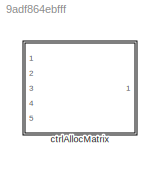
MODEL slx_9adf864ebfff
KIND library
CONFIG AbsTol = auto
CONFIG EnableMultiTasking = off
CONFIG FixedStep = auto
CONFIG MaxStep = auto
CONFIG MinStep = auto
CONFIG RelTol = 1e-3
CONFIG SampleTimeConstraint = Unconstrained
CONFIG SolverName = VariableStepAuto
CONFIG StartTime = 0.0
CONFIG StopTime = 10.0
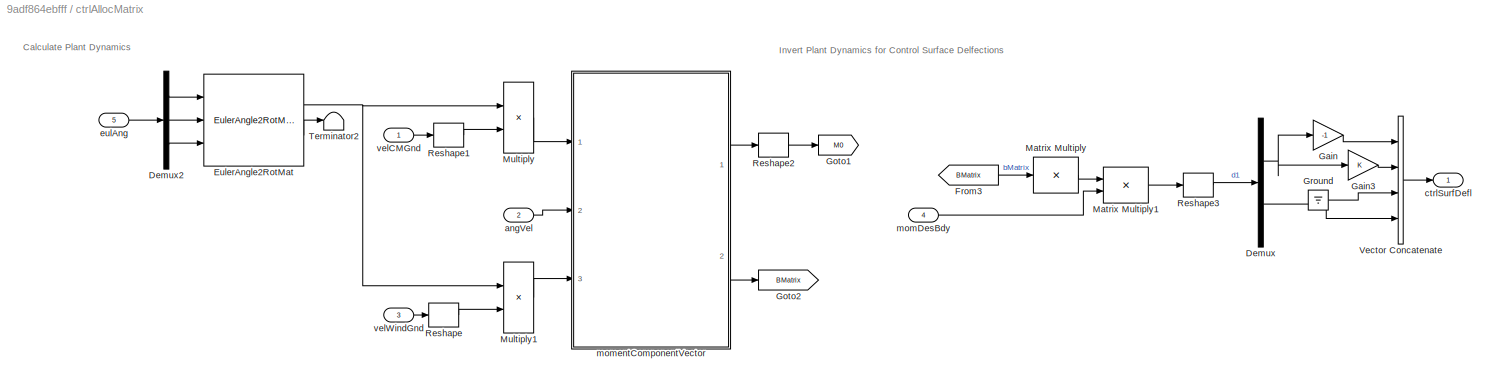
BLOCK [SubSystem] ctrlAllocMatrix
  MinAlgLoopOccurrences = on
  Ports = [5, 1]
  RequestExecContextInheritance = off
BLOCK [Demux] ctrlAllocMatrix/Demux
  Outputs = 2
  Ports = [1, 2]
BLOCK [Demux] ctrlAllocMatrix/Demux2
  Outputs = 3
  Ports = [1, 3]
BLOCK [Reference] ctrlAllocMatrix/EulerAngle2RotMat  REF=eulAng2RotMat_ul/EulerAngle2RotMat
  Ports = [3, 2]
  SourceBlock = eulAng2RotMat_ul/EulerAngle2RotMat
  SourceType = SubSystem
BLOCK [From] ctrlAllocMatrix/From3
  GotoTag = BMatrix
BLOCK [Gain] ctrlAllocMatrix/Gain
  Gain = -1
BLOCK [Gain] ctrlAllocMatrix/Gain3
BLOCK [Goto] ctrlAllocMatrix/Goto1
  GotoTag = M0
BLOCK [Goto] ctrlAllocMatrix/Goto2
  GotoTag = BMatrix
BLOCK [Ground] ctrlAllocMatrix/Ground
BLOCK [Product] ctrlAllocMatrix/Matrix Multiply
  Inputs = /
  Multiplication = Matrix(*)
  Ports = [1, 1]
BLOCK [Product] ctrlAllocMatrix/Matrix Multiply1
  Multiplication = Matrix(*)
  Ports = [2, 1]
BLOCK [Product] ctrlAllocMatrix/Multiply
  Multiplication = Matrix(*)
  Ports = [2, 1]
BLOCK [Product] ctrlAllocMatrix/Multiply1
  Multiplication = Matrix(*)
  Ports = [2, 1]
BLOCK [Reshape] ctrlAllocMatrix/Reshape
  OutputDimensionality = Column vector (2-D)
  Ports = [1, 1]
BLOCK [Reshape] ctrlAllocMatrix/Reshape1
  OutputDimensionality = Column vector (2-D)
  Ports = [1, 1]
BLOCK [Reshape] ctrlAllocMatrix/Reshape2
  OutputDimensionality = Column vector (2-D)
  Ports = [1, 1]
BLOCK [Reshape] ctrlAllocMatrix/Reshape3
  Ports = [1, 1]
BLOCK [Terminator] ctrlAllocMatrix/Terminator2
BLOCK [Concatenate] ctrlAllocMatrix/Vector Concatenate
  NumInputs = 4
  Ports = [4, 1]
BLOCK [Inport] ctrlAllocMatrix/angVel
  Port = 2
BLOCK [Outport] ctrlAllocMatrix/ctrlSurfDefl
  VectorParamsAs1DForOutWhenUnconnected = off
BLOCK [Inport] ctrlAllocMatrix/eulAng
  Port = 5
BLOCK [Inport] ctrlAllocMatrix/momDesBdy
  Port = 4
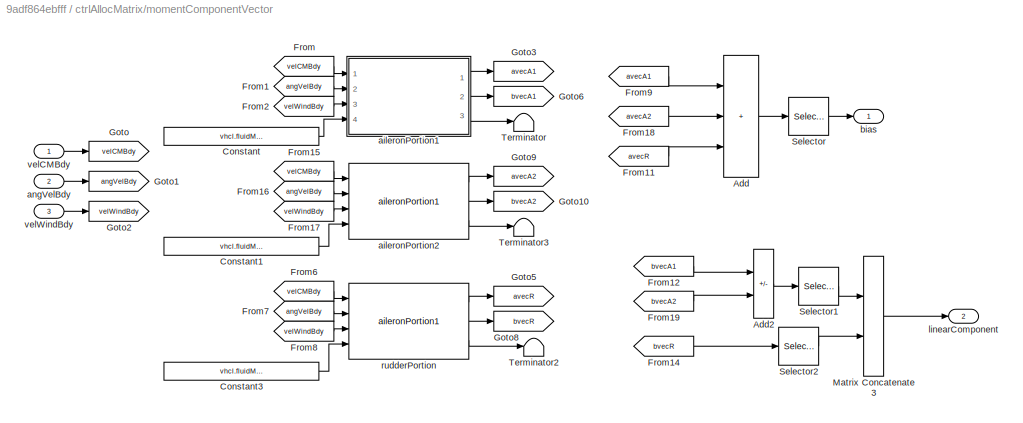
BLOCK [SubSystem] ctrlAllocMatrix/momentComponentVector
  Ports = [3, 2]
  RequestExecContextInheritance = off
BLOCK [Sum] ctrlAllocMatrix/momentComponentVector/Add
  IconShape = rectangular
  Inputs = +++
  Ports = [3, 1]
BLOCK [Sum] ctrlAllocMatrix/momentComponentVector/Add2
  IconShape = rectangular
  Inputs = -+
  Ports = [2, 1]
BLOCK [Constant] ctrlAllocMatrix/momentComponentVector/Constant
  Value = vhcl.fluidMomentArms.Value(:,1)
BLOCK [Constant] ctrlAllocMatrix/momentComponentVector/Constant1
  Value = vhcl.fluidMomentArms.Value(:,2)
BLOCK [Constant] ctrlAllocMatrix/momentComponentVector/Constant3
  Value = vhcl.fluidMomentArms.Value(:,4)
BLOCK [From] ctrlAllocMatrix/momentComponentVector/From
  GotoTag = velCMBdy
BLOCK [From] ctrlAllocMatrix/momentComponentVector/From1
  GotoTag = angVelBdy
BLOCK [From] ctrlAllocMatrix/momentComponentVector/From11
  GotoTag = avecR
BLOCK [From] ctrlAllocMatrix/momentComponentVector/From12
  GotoTag = bvecA1
BLOCK [From] ctrlAllocMatrix/momentComponentVector/From14
  GotoTag = bvecR
BLOCK [From] ctrlAllocMatrix/momentComponentVector/From15
  GotoTag = velCMBdy
BLOCK [From] ctrlAllocMatrix/momentComponentVector/From16
  GotoTag = angVelBdy
BLOCK [From] ctrlAllocMatrix/momentComponentVector/From17
  GotoTag = velWindBdy
BLOCK [From] ctrlAllocMatrix/momentComponentVector/From18
  GotoTag = avecA2
BLOCK [From] ctrlAllocMatrix/momentComponentVector/From19
  GotoTag = bvecA2
BLOCK [From] ctrlAllocMatrix/momentComponentVector/From2
  GotoTag = velWindBdy
BLOCK [From] ctrlAllocMatrix/momentComponentVector/From6
  GotoTag = velCMBdy
BLOCK [From] ctrlAllocMatrix/momentComponentVector/From7
  GotoTag = angVelBdy
BLOCK [From] ctrlAllocMatrix/momentComponentVector/From8
  GotoTag = velWindBdy
BLOCK [From] ctrlAllocMatrix/momentComponentVector/From9
  GotoTag = avecA1
BLOCK [Goto] ctrlAllocMatrix/momentComponentVector/Goto
  GotoTag = velCMBdy
BLOCK [Goto] ctrlAllocMatrix/momentComponentVector/Goto1
  GotoTag = angVelBdy
BLOCK [Goto] ctrlAllocMatrix/momentComponentVector/Goto10
  GotoTag = bvecA2
BLOCK [Goto] ctrlAllocMatrix/momentComponentVector/Goto2
  GotoTag = velWindBdy
BLOCK [Goto] ctrlAllocMatrix/momentComponentVector/Goto3
  GotoTag = avecA1
BLOCK [Goto] ctrlAllocMatrix/momentComponentVector/Goto5
  GotoTag = avecR
BLOCK [Goto] ctrlAllocMatrix/momentComponentVector/Goto6
  GotoTag = bvecA1
BLOCK [Goto] ctrlAllocMatrix/momentComponentVector/Goto8
  GotoTag = bvecR
BLOCK [Goto] ctrlAllocMatrix/momentComponentVector/Goto9
  GotoTag = avecA2
BLOCK [Concatenate] ctrlAllocMatrix/momentComponentVector/Matrix Concatenate3
  ConcatenateDimension = 2
  Mode = Multidimensional array
  Ports = [2, 1]
BLOCK [Selector] ctrlAllocMatrix/momentComponentVector/Selector
  IndexOptions = Index vector (dialog)
  Indices = [1 3]
  InputPortWidth = 3
  OutputSizes = 1
  Ports = [1, 1]
BLOCK [Selector] ctrlAllocMatrix/momentComponentVector/Selector1
  IndexOptions = Index vector (dialog)
  Indices = [1 3]
  InputPortWidth = 3
  OutputSizes = 1
  Ports = [1, 1]
BLOCK [Selector] ctrlAllocMatrix/momentComponentVector/Selector2
  IndexOptions = Index vector (dialog)
  Indices = [1 3]
  InputPortWidth = 3
  OutputSizes = 1
  Ports = [1, 1]
BLOCK [Terminator] ctrlAllocMatrix/momentComponentVector/Terminator
BLOCK [Terminator] ctrlAllocMatrix/momentComponentVector/Terminator2
BLOCK [Terminator] ctrlAllocMatrix/momentComponentVector/Terminator3
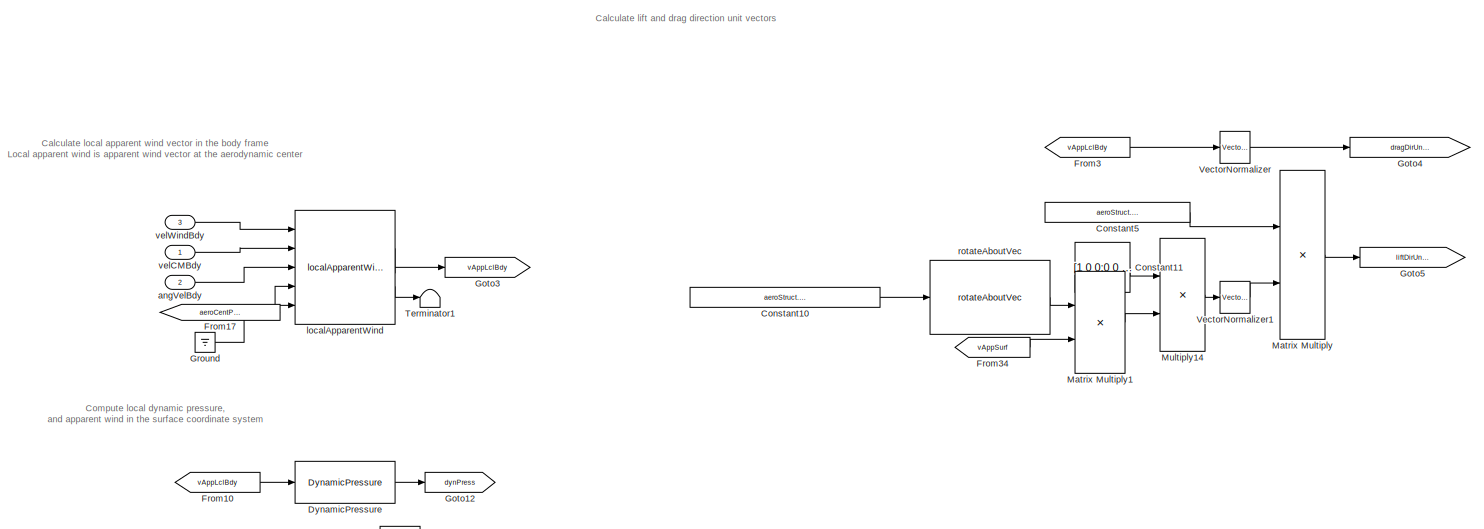
[diagram: ctrlAllocMatrix/momentComponentVector/aileronPortion1 - part 1/4, top center region]
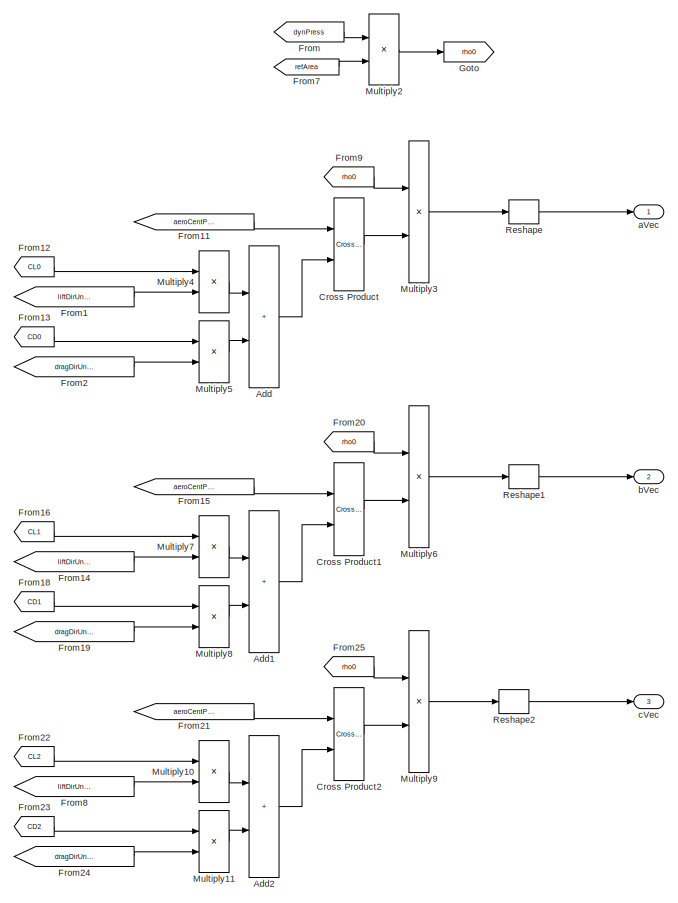
[diagram: ctrlAllocMatrix/momentComponentVector/aileronPortion1 - part 2/4, middle right region]
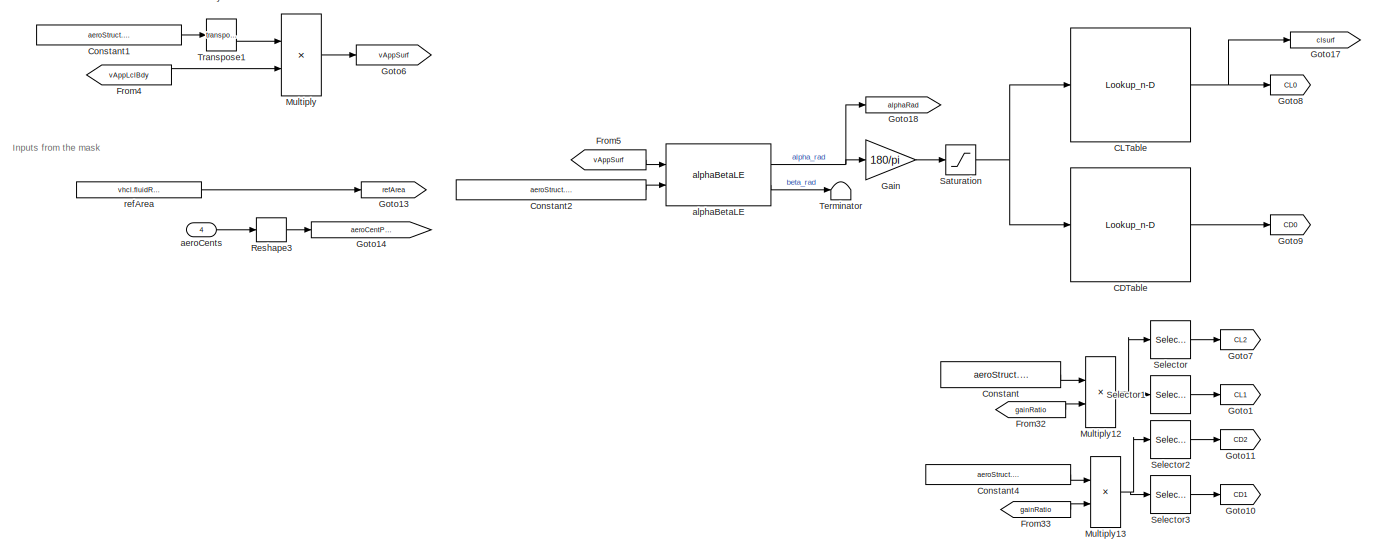
[diagram: ctrlAllocMatrix/momentComponentVector/aileronPortion1 - part 3/4, central region]
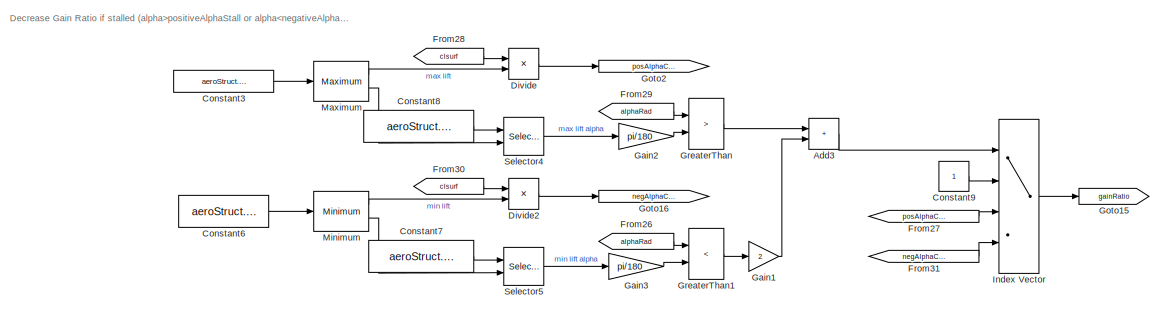
[diagram: ctrlAllocMatrix/momentComponentVector/aileronPortion1 - part 4/4, bottom right region]
BLOCK [SubSystem] ctrlAllocMatrix/momentComponentVector/aileronPortion1
  Ports = [4, 3]
  RequestExecContextInheritance = off
BLOCK [Sum] ctrlAllocMatrix/momentComponentVector/aileronPortion1/Add
  IconShape = rectangular
  Ports = [2, 1]
BLOCK [Sum] ctrlAllocMatrix/momentComponentVector/aileronPortion1/Add1
  IconShape = rectangular
  Ports = [2, 1]
BLOCK [Sum] ctrlAllocMatrix/momentComponentVector/aileronPortion1/Add2
  IconShape = rectangular
  Ports = [2, 1]
BLOCK [Sum] ctrlAllocMatrix/momentComponentVector/aileronPortion1/Add3
  IconShape = rectangular
  Ports = [2, 1]
BLOCK [Lookup_n-D] ctrlAllocMatrix/momentComponentVector/aileronPortion1/CDTable
  BreakpointsForDimension1 = aeroStruct.alpha.Value
  ExtrapMethod = Clip
  InputPortMap = u0
  InternalRulePriority = Speed
  LookupTableObject = CLTable
  NumberOfTableDimensions = 1
  Ports = [1, 1]
  RndMeth = Simplest
  Table = aeroStruct.CD.Value
  UseLastTableValue = on
BLOCK [Lookup_n-D] ctrlAllocMatrix/momentComponentVector/aileronPortion1/CLTable
  BreakpointsForDimension1 = aeroStruct.alpha.Value
  ExtrapMethod = Clip
  InputPortMap = u0
  InternalRulePriority = Speed
  LookupTableObject = CLTable
  NumberOfTableDimensions = 1
  Ports = [1, 1]
  RndMeth = Simplest
  Table = aeroStruct.CL.Value
  UseLastTableValue = on
BLOCK [Constant] ctrlAllocMatrix/momentComponentVector/aileronPortion1/Constant
  NameLocation = top
  Value = aeroStruct.gainCL.Value
BLOCK [Constant] ctrlAllocMatrix/momentComponentVector/aileronPortion1/Constant1
  Value = aeroStruct.RSurf2Bdy.Value
BLOCK [Constant] ctrlAllocMatrix/momentComponentVector/aileronPortion1/Constant10
  Value = aeroStruct.incAlphaUnitVecSurf.Value
BLOCK [Constant] ctrlAllocMatrix/momentComponentVector/aileronPortion1/Constant11
  Value = [1 0 0;0 0 0;0 0 1]
BLOCK [Constant] ctrlAllocMatrix/momentComponentVector/aileronPortion1/Constant2
  Value = aeroStruct.incAlphaUnitVecSurf.Value
BLOCK [Constant] ctrlAllocMatrix/momentComponentVector/aileronPortion1/Constant3
  Value = aeroStruct.CL.Value
BLOCK [Constant] ctrlAllocMatrix/momentComponentVector/aileronPortion1/Constant4
  NameLocation = top
  Value = aeroStruct.gainCD.Value
BLOCK [Constant] ctrlAllocMatrix/momentComponentVector/aileronPortion1/Constant5
  Value = aeroStruct.RSurf2Bdy.Value
BLOCK [Constant] ctrlAllocMatrix/momentComponentVector/aileronPortion1/Constant6
  Value = aeroStruct.CL.Value
BLOCK [Constant] ctrlAllocMatrix/momentComponentVector/aileronPortion1/Constant7
  Value = aeroStruct.alpha.Value
BLOCK [Constant] ctrlAllocMatrix/momentComponentVector/aileronPortion1/Constant8
  Value = aeroStruct.alpha.Value
BLOCK [Constant] ctrlAllocMatrix/momentComponentVector/aileronPortion1/Constant9
BLOCK [Reference] ctrlAllocMatrix/momentComponentVector/aileronPortion1/Cross Product  REF=vrlib/Utilities/Cross Product
  Ports = [2, 1]
  SourceBlock = vrlib/Utilities/Cross Product
  SourceProductBaseCode = SL
  SourceType = Cross Product
BLOCK [Reference] ctrlAllocMatrix/momentComponentVector/aileronPortion1/Cross Product1  REF=vrlib/Utilities/Cross Product
  Ports = [2, 1]
  SourceBlock = vrlib/Utilities/Cross Product
  SourceProductBaseCode = SL
  SourceType = Cross Product
BLOCK [Reference] ctrlAllocMatrix/momentComponentVector/aileronPortion1/Cross Product2  REF=vrlib/Utilities/Cross Product
  Ports = [2, 1]
  SourceBlock = vrlib/Utilities/Cross Product
  SourceProductBaseCode = SL
  SourceType = Cross Product
BLOCK [Product] ctrlAllocMatrix/momentComponentVector/aileronPortion1/Divide
  Inputs = */
  Ports = [2, 1]
BLOCK [Product] ctrlAllocMatrix/momentComponentVector/aileronPortion1/Divide2
  Inputs = */
  Ports = [2, 1]
BLOCK [Reference] ctrlAllocMatrix/momentComponentVector/aileronPortion1/DynamicPressure  REF=dynamicPressure_ul/DynamicPressure
  Ports = [1, 1]
  SourceBlock = dynamicPressure_ul/DynamicPressure
BLOCK [From] ctrlAllocMatrix/momentComponentVector/aileronPortion1/From
  GotoTag = dynPress
BLOCK [From] ctrlAllocMatrix/momentComponentVector/aileronPortion1/From1
  GotoTag = liftDirUnitVecBdy
BLOCK [From] ctrlAllocMatrix/momentComponentVector/aileronPortion1/From10
  GotoTag = vAppLclBdy
BLOCK [From] ctrlAllocMatrix/momentComponentVector/aileronPortion1/From11
  GotoTag = aeroCentPosVecBdy
BLOCK [From] ctrlAllocMatrix/momentComponentVector/aileronPortion1/From12
  GotoTag = CL0
BLOCK [From] ctrlAllocMatrix/momentComponentVector/aileronPortion1/From13
  GotoTag = CD0
BLOCK [From] ctrlAllocMatrix/momentComponentVector/aileronPortion1/From14
  GotoTag = liftDirUnitVecBdy
BLOCK [From] ctrlAllocMatrix/momentComponentVector/aileronPortion1/From15
  GotoTag = aeroCentPosVecBdy
BLOCK [From] ctrlAllocMatrix/momentComponentVector/aileronPortion1/From16
  GotoTag = CL1
BLOCK [From] ctrlAllocMatrix/momentComponentVector/aileronPortion1/From17
  GotoTag = aeroCentPosVecBdy
BLOCK [From] ctrlAllocMatrix/momentComponentVector/aileronPortion1/From18
  GotoTag = CD1
BLOCK [From] ctrlAllocMatrix/momentComponentVector/aileronPortion1/From19
  GotoTag = dragDirUnitVecBdy
BLOCK [From] ctrlAllocMatrix/momentComponentVector/aileronPortion1/From2
  GotoTag = dragDirUnitVecBdy
BLOCK [From] ctrlAllocMatrix/momentComponentVector/aileronPortion1/From20
  GotoTag = rho0
BLOCK [From] ctrlAllocMatrix/momentComponentVector/aileronPortion1/From21
  GotoTag = aeroCentPosVecBdy
BLOCK [From] ctrlAllocMatrix/momentComponentVector/aileronPortion1/From22
  GotoTag = CL2
BLOCK [From] ctrlAllocMatrix/momentComponentVector/aileronPortion1/From23
  GotoTag = CD2
BLOCK [From] ctrlAllocMatrix/momentComponentVector/aileronPortion1/From24
  GotoTag = dragDirUnitVecBdy
BLOCK [From] ctrlAllocMatrix/momentComponentVector/aileronPortion1/From25
  GotoTag = rho0
BLOCK [From] ctrlAllocMatrix/momentComponentVector/aileronPortion1/From26
  GotoTag = alphaRad
BLOCK [From] ctrlAllocMatrix/momentComponentVector/aileronPortion1/From27
  GotoTag = posAlphaCLRatio
BLOCK [From] ctrlAllocMatrix/momentComponentVector/aileronPortion1/From28
  GotoTag = clsurf
BLOCK [From] ctrlAllocMatrix/momentComponentVector/aileronPortion1/From29
  GotoTag = alphaRad
BLOCK [From] ctrlAllocMatrix/momentComponentVector/aileronPortion1/From3
  GotoTag = vAppLclBdy
BLOCK [From] ctrlAllocMatrix/momentComponentVector/aileronPortion1/From30
  GotoTag = clsurf
BLOCK [From] ctrlAllocMatrix/momentComponentVector/aileronPortion1/From31
  GotoTag = negAlphaCLRatio
BLOCK [From] ctrlAllocMatrix/momentComponentVector/aileronPortion1/From32
  GotoTag = gainRatio
BLOCK [From] ctrlAllocMatrix/momentComponentVector/aileronPortion1/From33
  GotoTag = gainRatio
BLOCK [From] ctrlAllocMatrix/momentComponentVector/aileronPortion1/From34
  GotoTag = vAppSurf
BLOCK [From] ctrlAllocMatrix/momentComponentVector/aileronPortion1/From4
  GotoTag = vAppLclBdy
BLOCK [From] ctrlAllocMatrix/momentComponentVector/aileronPortion1/From5
  GotoTag = vAppSurf
BLOCK [From] ctrlAllocMatrix/momentComponentVector/aileronPortion1/From7
  GotoTag = refArea
BLOCK [From] ctrlAllocMatrix/momentComponentVector/aileronPortion1/From8
  GotoTag = liftDirUnitVecBdy
BLOCK [From] ctrlAllocMatrix/momentComponentVector/aileronPortion1/From9
  GotoTag = rho0
BLOCK [Gain] ctrlAllocMatrix/momentComponentVector/aileronPortion1/Gain
  Gain = 180/pi
BLOCK [Gain] ctrlAllocMatrix/momentComponentVector/aileronPortion1/Gain1
  Gain = 2
BLOCK [Gain] ctrlAllocMatrix/momentComponentVector/aileronPortion1/Gain2
  Gain = pi/180
BLOCK [Gain] ctrlAllocMatrix/momentComponentVector/aileronPortion1/Gain3
  Gain = pi/180
BLOCK [Goto] ctrlAllocMatrix/momentComponentVector/aileronPortion1/Goto
  GotoTag = rho0
BLOCK [Goto] ctrlAllocMatrix/momentComponentVector/aileronPortion1/Goto1
  GotoTag = CL1
BLOCK [Goto] ctrlAllocMatrix/momentComponentVector/aileronPortion1/Goto10
  GotoTag = CD1
BLOCK [Goto] ctrlAllocMatrix/momentComponentVector/aileronPortion1/Goto11
  GotoTag = CD2
BLOCK [Goto] ctrlAllocMatrix/momentComponentVector/aileronPortion1/Goto12
  GotoTag = dynPress
BLOCK [Goto] ctrlAllocMatrix/momentComponentVector/aileronPortion1/Goto13
  GotoTag = refArea
BLOCK [Goto] ctrlAllocMatrix/momentComponentVector/aileronPortion1/Goto14
  GotoTag = aeroCentPosVecBdy
BLOCK [Goto] ctrlAllocMatrix/momentComponentVector/aileronPortion1/Goto15
  GotoTag = gainRatio
BLOCK [Goto] ctrlAllocMatrix/momentComponentVector/aileronPortion1/Goto16
  GotoTag = negAlphaCLRatio
BLOCK [Goto] ctrlAllocMatrix/momentComponentVector/aileronPortion1/Goto17
  GotoTag = clsurf
BLOCK [Goto] ctrlAllocMatrix/momentComponentVector/aileronPortion1/Goto18
  GotoTag = alphaRad
BLOCK [Goto] ctrlAllocMatrix/momentComponentVector/aileronPortion1/Goto2
  GotoTag = posAlphaCLRatio
BLOCK [Goto] ctrlAllocMatrix/momentComponentVector/aileronPortion1/Goto3
  GotoTag = vAppLclBdy
BLOCK [Goto] ctrlAllocMatrix/momentComponentVector/aileronPortion1/Goto4
  GotoTag = dragDirUnitVecBdy
BLOCK [Goto] ctrlAllocMatrix/momentComponentVector/aileronPortion1/Goto5
  GotoTag = liftDirUnitVecBdy
BLOCK [Goto] ctrlAllocMatrix/momentComponentVector/aileronPortion1/Goto6
  GotoTag = vAppSurf
BLOCK [Goto] ctrlAllocMatrix/momentComponentVector/aileronPortion1/Goto7
  GotoTag = CL2
BLOCK [Goto] ctrlAllocMatrix/momentComponentVector/aileronPortion1/Goto8
  GotoTag = CL0
BLOCK [Goto] ctrlAllocMatrix/momentComponentVector/aileronPortion1/Goto9
  GotoTag = CD0
BLOCK [RelationalOperator] ctrlAllocMatrix/momentComponentVector/aileronPortion1/GreaterThan
  InputSameDT = off
  Operator = >
  OutDataTypeStr = boolean
  Ports = [2, 1]
  RndMeth = Simplest
BLOCK [RelationalOperator] ctrlAllocMatrix/momentComponentVector/aileronPortion1/GreaterThan1
  InputSameDT = off
  Operator = <
  OutDataTypeStr = boolean
  Ports = [2, 1]
  RndMeth = Simplest
BLOCK [Ground] ctrlAllocMatrix/momentComponentVector/aileronPortion1/Ground
BLOCK [MultiPortSwitch] ctrlAllocMatrix/momentComponentVector/aileronPortion1/Index Vector
  DataPortOrder = Zero-based contiguous
  InputSameDT = off
  Ports = [4, 1]
  SaturateOnIntegerOverflow = off
  zeroidx = on
BLOCK [Product] ctrlAllocMatrix/momentComponentVector/aileronPortion1/Matrix Multiply
  Multiplication = Matrix(*)
  Ports = [2, 1]
BLOCK [Product] ctrlAllocMatrix/momentComponentVector/aileronPortion1/Matrix Multiply1
  Multiplication = Matrix(*)
  Ports = [2, 1]
BLOCK [Reference] ctrlAllocMatrix/momentComponentVector/aileronPortion1/Maximum  REF=dspstat3/Maximum
  Ports = [1, 2]
  SourceBlock = dspstat3/Maximum
  SourceProductBaseCode = DS
  SourceType = Maximum
  UserDataPersistent = on
BLOCK [Reference] ctrlAllocMatrix/momentComponentVector/aileronPortion1/Minimum  REF=dspstat3/Minimum
  Ports = [1, 2]
  SourceBlock = dspstat3/Minimum
  SourceProductBaseCode = DS
  SourceType = Minimum
  UserDataPersistent = on
BLOCK [Product] ctrlAllocMatrix/momentComponentVector/aileronPortion1/Multiply
  Multiplication = Matrix(*)
  Ports = [2, 1]
BLOCK [Product] ctrlAllocMatrix/momentComponentVector/aileronPortion1/Multiply10
  Ports = [2, 1]
BLOCK [Product] ctrlAllocMatrix/momentComponentVector/aileronPortion1/Multiply11
  Ports = [2, 1]
BLOCK [Product] ctrlAllocMatrix/momentComponentVector/aileronPortion1/Multiply12
  Ports = [2, 1]
BLOCK [Product] ctrlAllocMatrix/momentComponentVector/aileronPortion1/Multiply13
  Ports = [2, 1]
BLOCK [Product] ctrlAllocMatrix/momentComponentVector/aileronPortion1/Multiply14
  Multiplication = Matrix(*)
  Ports = [2, 1]
BLOCK [Product] ctrlAllocMatrix/momentComponentVector/aileronPortion1/Multiply2
  Ports = [2, 1]
BLOCK [Product] ctrlAllocMatrix/momentComponentVector/aileronPortion1/Multiply3
  Ports = [2, 1]
BLOCK [Product] ctrlAllocMatrix/momentComponentVector/aileronPortion1/Multiply4
  Ports = [2, 1]
BLOCK [Product] ctrlAllocMatrix/momentComponentVector/aileronPortion1/Multiply5
  Ports = [2, 1]
BLOCK [Product] ctrlAllocMatrix/momentComponentVector/aileronPortion1/Multiply6
  Ports = [2, 1]
BLOCK [Product] ctrlAllocMatrix/momentComponentVector/aileronPortion1/Multiply7
  Ports = [2, 1]
BLOCK [Product] ctrlAllocMatrix/momentComponentVector/aileronPortion1/Multiply8
  Ports = [2, 1]
BLOCK [Product] ctrlAllocMatrix/momentComponentVector/aileronPortion1/Multiply9
  Ports = [2, 1]
BLOCK [Reshape] ctrlAllocMatrix/momentComponentVector/aileronPortion1/Reshape
  OutputDimensionality = Column vector (2-D)
  Ports = [1, 1]
BLOCK [Reshape] ctrlAllocMatrix/momentComponentVector/aileronPortion1/Reshape1
  OutputDimensionality = Column vector (2-D)
  Ports = [1, 1]
BLOCK [Reshape] ctrlAllocMatrix/momentComponentVector/aileronPortion1/Reshape2
  OutputDimensionality = Column vector (2-D)
  Ports = [1, 1]
BLOCK [Reshape] ctrlAllocMatrix/momentComponentVector/aileronPortion1/Reshape3
  OutputDimensionality = Column vector (2-D)
  Ports = [1, 1]
BLOCK [Saturate] ctrlAllocMatrix/momentComponentVector/aileronPortion1/Saturation
  LowerLimit = -90
  UpperLimit = 90
BLOCK [Selector] ctrlAllocMatrix/momentComponentVector/aileronPortion1/Selector
  IndexOptions = Index vector (dialog)
  Indices = 1
  InputPortWidth = 3
  OutputSizes = 1
  Ports = [1, 1]
BLOCK [Selector] ctrlAllocMatrix/momentComponentVector/aileronPortion1/Selector1
  IndexOptions = Index vector (dialog)
  Indices = 2
  InputPortWidth = 3
  OutputSizes = 1
  Ports = [1, 1]
BLOCK [Selector] ctrlAllocMatrix/momentComponentVector/aileronPortion1/Selector2
  IndexOptions = Index vector (dialog)
  Indices = 1
  InputPortWidth = 3
  OutputSizes = 1
  Ports = [1, 1]
BLOCK [Selector] ctrlAllocMatrix/momentComponentVector/aileronPortion1/Selector3
  IndexOptions = Index vector (dialog)
  Indices = 2
  InputPortWidth = 3
  OutputSizes = 1
  Ports = [1, 1]
BLOCK [Selector] ctrlAllocMatrix/momentComponentVector/aileronPortion1/Selector4
  IndexOptions = Index vector (port)
  Indices = [1 3]
  InputPortWidth = length(vhcl.portWing.alpha.Value)
  OutputSizes = 1
  Ports = [2, 1]
BLOCK [Selector] ctrlAllocMatrix/momentComponentVector/aileronPortion1/Selector5
  IndexOptions = Index vector (port)
  Indices = [1 3]
  InputPortWidth = length(vhcl.portWing.alpha.Value)
  OutputSizes = 1
  Ports = [2, 1]
BLOCK [Terminator] ctrlAllocMatrix/momentComponentVector/aileronPortion1/Terminator
BLOCK [Terminator] ctrlAllocMatrix/momentComponentVector/aileronPortion1/Terminator1
BLOCK [Math] ctrlAllocMatrix/momentComponentVector/aileronPortion1/Transpose1
  Operator = transpose
  Ports = [1, 1]
  SignedPower = on
BLOCK [Reference] ctrlAllocMatrix/momentComponentVector/aileronPortion1/VectorNormalizer   REF=vectorNormalizer_ul/VectorNormalizer

  Ports = [1, 1]
  SourceBlock = vectorNormalizer_ul/VectorNormalizer
  SourceType = SubSystem
BLOCK [Reference] ctrlAllocMatrix/momentComponentVector/aileronPortion1/VectorNormalizer1  REF=vectorNormalizer_ul/VectorNormalizer

  Ports = [1, 1]
  SourceBlock = vectorNormalizer_ul/VectorNormalizer
  SourceType = SubSystem
BLOCK [Outport] ctrlAllocMatrix/momentComponentVector/aileronPortion1/aVec
  PortDimensions = [3 1]
  VectorParamsAs1DForOutWhenUnconnected = off
BLOCK [Inport] ctrlAllocMatrix/momentComponentVector/aileronPortion1/aeroCents
  Port = 4
BLOCK [Reference] ctrlAllocMatrix/momentComponentVector/aileronPortion1/alphaBetaLE  REF=alphaBetaLE_ul/alphaBetaLE
  Ports = [2, 2]
  SourceBlock = alphaBetaLE_ul/alphaBetaLE
  SourceType = SubSystem
BLOCK [Inport] ctrlAllocMatrix/momentComponentVector/aileronPortion1/angVelBdy
  Port = 2
BLOCK [Outport] ctrlAllocMatrix/momentComponentVector/aileronPortion1/bVec
  Port = 2
  PortDimensions = [3 1]
  VectorParamsAs1DForOutWhenUnconnected = off
BLOCK [Outport] ctrlAllocMatrix/momentComponentVector/aileronPortion1/cVec
  Port = 3
  PortDimensions = [3 1]
  VectorParamsAs1DForOutWhenUnconnected = off
BLOCK [Reference] ctrlAllocMatrix/momentComponentVector/aileronPortion1/localApparentWind  REF=localApparentWind_ul/localApparentWind
  Ports = [5, 2]
  SourceBlock = localApparentWind_ul/localApparentWind
  SourceType = SubSystem
BLOCK [Constant] ctrlAllocMatrix/momentComponentVector/aileronPortion1/refArea
  Value = vhcl.fluidRefArea.Value
BLOCK [Reference] ctrlAllocMatrix/momentComponentVector/aileronPortion1/rotateAboutVec  REF=rotateAboutVec/rotateAboutVec
  Ports = [1, 1]
  SourceBlock = rotateAboutVec/rotateAboutVec
BLOCK [Inport] ctrlAllocMatrix/momentComponentVector/aileronPortion1/velCMBdy
BLOCK [Inport] ctrlAllocMatrix/momentComponentVector/aileronPortion1/velWindBdy
  Port = 3
BLOCK [Reference] ctrlAllocMatrix/momentComponentVector/aileronPortion2  REF=$bdroot/ctrlAllocMatrix/momentComponentVector/aileronPortion1
  Ports = [4, 3]
  SourceBlock = $bdroot/ctrlAllocMatrix/momentComponentVector/aileronPortion1
BLOCK [Inport] ctrlAllocMatrix/momentComponentVector/angVelBdy
  Port = 2
BLOCK [Outport] ctrlAllocMatrix/momentComponentVector/bias
BLOCK [Outport] ctrlAllocMatrix/momentComponentVector/linearComponent
  Port = 2
BLOCK [Reference] ctrlAllocMatrix/momentComponentVector/rudderPortion  REF=$bdroot/ctrlAllocMatrix/momentComponentVector/aileronPortion1
  Ports = [4, 3]
  SourceBlock = $bdroot/ctrlAllocMatrix/momentComponentVector/aileronPortion1
BLOCK [Inport] ctrlAllocMatrix/momentComponentVector/velCMBdy
BLOCK [Inport] ctrlAllocMatrix/momentComponentVector/velWindBdy
  Port = 3
BLOCK [Inport] ctrlAllocMatrix/velCMGnd
BLOCK [Inport] ctrlAllocMatrix/velWindGnd
  Port = 3
ANNOTATION ctrlAllocMatrix: Calculate Plant Dynamics
ANNOTATION ctrlAllocMatrix: Invert Plant Dynamics for Control Surface Delfections
ANNOTATION ctrlAllocMatrix/momentComponentVector/aileronPortion1: Calculate lift and drag direction unit vectors
ANNOTATION ctrlAllocMatrix/momentComponentVector/aileronPortion1: Calculate local apparent wind vector in the body frame Local apparent wind is apparent wind vector at the aerodynamic center
ANNOTATION ctrlAllocMatrix/momentComponentVector/aileronPortion1: Compute local dynamic pressure, and apparent wind in the surface coordinate system
ANNOTATION ctrlAllocMatrix/momentComponentVector/aileronPortion1: Decrease Gain Ratio if stalled (alpha>positiveAlphaStall or alpha<negativeAlphaStall)
ANNOTATION ctrlAllocMatrix/momentComponentVector/aileronPortion1: Inputs from the mask
LINE ctrlAllocMatrix/Demux2:1 -> ctrlAllocMatrix/EulerAngle2RotMat:1
LINE ctrlAllocMatrix/Demux2:2 -> ctrlAllocMatrix/EulerAngle2RotMat:2
LINE ctrlAllocMatrix/Demux2:3 -> ctrlAllocMatrix/EulerAngle2RotMat:3
NET ctrlAllocMatrix/Demux:1 -> ctrlAllocMatrix/Gain3:1, ctrlAllocMatrix/Gain:1
LINE ctrlAllocMatrix/Demux:2 -> ctrlAllocMatrix/Vector Concatenate:4
NET ctrlAllocMatrix/EulerAngle2RotMat:1 -> ctrlAllocMatrix/Multiply1:1, ctrlAllocMatrix/Multiply:1
LINE ctrlAllocMatrix/EulerAngle2RotMat:2 -> ctrlAllocMatrix/Terminator2:1
LINE ctrlAllocMatrix/From3:1 -> ctrlAllocMatrix/Matrix Multiply:1
LINE ctrlAllocMatrix/Gain3:1 -> ctrlAllocMatrix/Vector Concatenate:2
LINE ctrlAllocMatrix/Gain:1 -> ctrlAllocMatrix/Vector Concatenate:1
LINE ctrlAllocMatrix/Ground:1 -> ctrlAllocMatrix/Vector Concatenate:3
LINE ctrlAllocMatrix/Matrix Multiply1:1 -> ctrlAllocMatrix/Reshape3:1
LINE ctrlAllocMatrix/Matrix Multiply:1 -> ctrlAllocMatrix/Matrix Multiply1:1
LINE ctrlAllocMatrix/Multiply1:1 -> ctrlAllocMatrix/momentComponentVector:3
LINE ctrlAllocMatrix/Multiply:1 -> ctrlAllocMatrix/momentComponentVector:1
LINE ctrlAllocMatrix/Reshape1:1 -> ctrlAllocMatrix/Multiply:2
LINE ctrlAllocMatrix/Reshape2:1 -> ctrlAllocMatrix/Goto1:1
LINE ctrlAllocMatrix/Reshape3:1 -> ctrlAllocMatrix/Demux:1
LINE ctrlAllocMatrix/Reshape:1 -> ctrlAllocMatrix/Multiply1:2
LINE ctrlAllocMatrix/Vector Concatenate:1 -> ctrlAllocMatrix/ctrlSurfDefl:1
LINE ctrlAllocMatrix/angVel:1 -> ctrlAllocMatrix/momentComponentVector:2
LINE ctrlAllocMatrix/eulAng:1 -> ctrlAllocMatrix/Demux2:1
LINE ctrlAllocMatrix/momDesBdy:1 -> ctrlAllocMatrix/Matrix Multiply1:2
LINE ctrlAllocMatrix/momentComponentVector/Add2:1 -> ctrlAllocMatrix/momentComponentVector/Selector1:1
LINE ctrlAllocMatrix/momentComponentVector/Add:1 -> ctrlAllocMatrix/momentComponentVector/Selector:1
LINE ctrlAllocMatrix/momentComponentVector/Constant1:1 -> ctrlAllocMatrix/momentComponentVector/aileronPortion2:4
LINE ctrlAllocMatrix/momentComponentVector/Constant3:1 -> ctrlAllocMatrix/momentComponentVector/rudderPortion:4
LINE ctrlAllocMatrix/momentComponentVector/Constant:1 -> ctrlAllocMatrix/momentComponentVector/aileronPortion1:4
LINE ctrlAllocMatrix/momentComponentVector/From11:1 -> ctrlAllocMatrix/momentComponentVector/Add:3
LINE ctrlAllocMatrix/momentComponentVector/From12:1 -> ctrlAllocMatrix/momentComponentVector/Add2:1
LINE ctrlAllocMatrix/momentComponentVector/From14:1 -> ctrlAllocMatrix/momentComponentVector/Selector2:1
LINE ctrlAllocMatrix/momentComponentVector/From15:1 -> ctrlAllocMatrix/momentComponentVector/aileronPortion2:1
LINE ctrlAllocMatrix/momentComponentVector/From16:1 -> ctrlAllocMatrix/momentComponentVector/aileronPortion2:2
LINE ctrlAllocMatrix/momentComponentVector/From17:1 -> ctrlAllocMatrix/momentComponentVector/aileronPortion2:3
LINE ctrlAllocMatrix/momentComponentVector/From18:1 -> ctrlAllocMatrix/momentComponentVector/Add:2
LINE ctrlAllocMatrix/momentComponentVector/From19:1 -> ctrlAllocMatrix/momentComponentVector/Add2:2
LINE ctrlAllocMatrix/momentComponentVector/From1:1 -> ctrlAllocMatrix/momentComponentVector/aileronPortion1:2
LINE ctrlAllocMatrix/momentComponentVector/From2:1 -> ctrlAllocMatrix/momentComponentVector/aileronPortion1:3
LINE ctrlAllocMatrix/momentComponentVector/From6:1 -> ctrlAllocMatrix/momentComponentVector/rudderPortion:1
LINE ctrlAllocMatrix/momentComponentVector/From7:1 -> ctrlAllocMatrix/momentComponentVector/rudderPortion:2
LINE ctrlAllocMatrix/momentComponentVector/From8:1 -> ctrlAllocMatrix/momentComponentVector/rudderPortion:3
LINE ctrlAllocMatrix/momentComponentVector/From9:1 -> ctrlAllocMatrix/momentComponentVector/Add:1
LINE ctrlAllocMatrix/momentComponentVector/From:1 -> ctrlAllocMatrix/momentComponentVector/aileronPortion1:1
LINE ctrlAllocMatrix/momentComponentVector/Matrix Concatenate3:1 -> ctrlAllocMatrix/momentComponentVector/linearComponent:1
LINE ctrlAllocMatrix/momentComponentVector/Selector1:1 -> ctrlAllocMatrix/momentComponentVector/Matrix Concatenate3:1
LINE ctrlAllocMatrix/momentComponentVector/Selector2:1 -> ctrlAllocMatrix/momentComponentVector/Matrix Concatenate3:2
LINE ctrlAllocMatrix/momentComponentVector/Selector:1 -> ctrlAllocMatrix/momentComponentVector/bias:1
LINE ctrlAllocMatrix/momentComponentVector/aileronPortion1/Add1:1 -> ctrlAllocMatrix/momentComponentVector/aileronPortion1/Cross Product1:2
LINE ctrlAllocMatrix/momentComponentVector/aileronPortion1/Add2:1 -> ctrlAllocMatrix/momentComponentVector/aileronPortion1/Cross Product2:2
LINE ctrlAllocMatrix/momentComponentVector/aileronPortion1/Add3:1 -> ctrlAllocMatrix/momentComponentVector/aileronPortion1/Index Vector:1
LINE ctrlAllocMatrix/momentComponentVector/aileronPortion1/Add:1 -> ctrlAllocMatrix/momentComponentVector/aileronPortion1/Cross Product:2
LINE ctrlAllocMatrix/momentComponentVector/aileronPortion1/CDTable:1 -> ctrlAllocMatrix/momentComponentVector/aileronPortion1/Goto9:1
NET ctrlAllocMatrix/momentComponentVector/aileronPortion1/CLTable:1 -> ctrlAllocMatrix/momentComponentVector/aileronPortion1/Goto17:1, ctrlAllocMatrix/momentComponentVector/aileronPortion1/Goto8:1
LINE ctrlAllocMatrix/momentComponentVector/aileronPortion1/Constant10:1 -> ctrlAllocMatrix/momentComponentVector/aileronPortion1/rotateAboutVec:1
LINE ctrlAllocMatrix/momentComponentVector/aileronPortion1/Constant11:1 -> ctrlAllocMatrix/momentComponentVector/aileronPortion1/Multiply14:1
LINE ctrlAllocMatrix/momentComponentVector/aileronPortion1/Constant1:1 -> ctrlAllocMatrix/momentComponentVector/aileronPortion1/Transpose1:1
LINE ctrlAllocMatrix/momentComponentVector/aileronPortion1/Constant2:1 -> ctrlAllocMatrix/momentComponentVector/aileronPortion1/alphaBetaLE:2
LINE ctrlAllocMatrix/momentComponentVector/aileronPortion1/Constant3:1 -> ctrlAllocMatrix/momentComponentVector/aileronPortion1/Maximum:1
LINE ctrlAllocMatrix/momentComponentVector/aileronPortion1/Constant4:1 -> ctrlAllocMatrix/momentComponentVector/aileronPortion1/Multiply13:1
LINE ctrlAllocMatrix/momentComponentVector/aileronPortion1/Constant5:1 -> ctrlAllocMatrix/momentComponentVector/aileronPortion1/Matrix Multiply:1
LINE ctrlAllocMatrix/momentComponentVector/aileronPortion1/Constant6:1 -> ctrlAllocMatrix/momentComponentVector/aileronPortion1/Minimum:1
LINE ctrlAllocMatrix/momentComponentVector/aileronPortion1/Constant7:1 -> ctrlAllocMatrix/momentComponentVector/aileronPortion1/Selector5:1
LINE ctrlAllocMatrix/momentComponentVector/aileronPortion1/Constant8:1 -> ctrlAllocMatrix/momentComponentVector/aileronPortion1/Selector4:1
LINE ctrlAllocMatrix/momentComponentVector/aileronPortion1/Constant9:1 -> ctrlAllocMatrix/momentComponentVector/aileronPortion1/Index Vector:2
LINE ctrlAllocMatrix/momentComponentVector/aileronPortion1/Constant:1 -> ctrlAllocMatrix/momentComponentVector/aileronPortion1/Multiply12:1
LINE ctrlAllocMatrix/momentComponentVector/aileronPortion1/Cross Product1:1 -> ctrlAllocMatrix/momentComponentVector/aileronPortion1/Multiply6:2
LINE ctrlAllocMatrix/momentComponentVector/aileronPortion1/Cross Product2:1 -> ctrlAllocMatrix/momentComponentVector/aileronPortion1/Multiply9:2
LINE ctrlAllocMatrix/momentComponentVector/aileronPortion1/Cross Product:1 -> ctrlAllocMatrix/momentComponentVector/aileronPortion1/Multiply3:2
LINE ctrlAllocMatrix/momentComponentVector/aileronPortion1/Divide2:1 -> ctrlAllocMatrix/momentComponentVector/aileronPortion1/Goto16:1
LINE ctrlAllocMatrix/momentComponentVector/aileronPortion1/Divide:1 -> ctrlAllocMatrix/momentComponentVector/aileronPortion1/Goto2:1
LINE ctrlAllocMatrix/momentComponentVector/aileronPortion1/DynamicPressure:1 -> ctrlAllocMatrix/momentComponentVector/aileronPortion1/Goto12:1
LINE ctrlAllocMatrix/momentComponentVector/aileronPortion1/From10:1 -> ctrlAllocMatrix/momentComponentVector/aileronPortion1/DynamicPressure:1
LINE ctrlAllocMatrix/momentComponentVector/aileronPortion1/From11:1 -> ctrlAllocMatrix/momentComponentVector/aileronPortion1/Cross Product:1
LINE ctrlAllocMatrix/momentComponentVector/aileronPortion1/From12:1 -> ctrlAllocMatrix/momentComponentVector/aileronPortion1/Multiply4:1
LINE ctrlAllocMatrix/momentComponentVector/aileronPortion1/From13:1 -> ctrlAllocMatrix/momentComponentVector/aileronPortion1/Multiply5:1
LINE ctrlAllocMatrix/momentComponentVector/aileronPortion1/From14:1 -> ctrlAllocMatrix/momentComponentVector/aileronPortion1/Multiply7:2
LINE ctrlAllocMatrix/momentComponentVector/aileronPortion1/From15:1 -> ctrlAllocMatrix/momentComponentVector/aileronPortion1/Cross Product1:1
LINE ctrlAllocMatrix/momentComponentVector/aileronPortion1/From16:1 -> ctrlAllocMatrix/momentComponentVector/aileronPortion1/Multiply7:1
LINE ctrlAllocMatrix/momentComponentVector/aileronPortion1/From17:1 -> ctrlAllocMatrix/momentComponentVector/aileronPortion1/localApparentWind:4
LINE ctrlAllocMatrix/momentComponentVector/aileronPortion1/From18:1 -> ctrlAllocMatrix/momentComponentVector/aileronPortion1/Multiply8:1
LINE ctrlAllocMatrix/momentComponentVector/aileronPortion1/From19:1 -> ctrlAllocMatrix/momentComponentVector/aileronPortion1/Multiply8:2
LINE ctrlAllocMatrix/momentComponentVector/aileronPortion1/From1:1 -> ctrlAllocMatrix/momentComponentVector/aileronPortion1/Multiply4:2
LINE ctrlAllocMatrix/momentComponentVector/aileronPortion1/From20:1 -> ctrlAllocMatrix/momentComponentVector/aileronPortion1/Multiply6:1
LINE ctrlAllocMatrix/momentComponentVector/aileronPortion1/From21:1 -> ctrlAllocMatrix/momentComponentVector/aileronPortion1/Cross Product2:1
LINE ctrlAllocMatrix/momentComponentVector/aileronPortion1/From22:1 -> ctrlAllocMatrix/momentComponentVector/aileronPortion1/Multiply10:1
LINE ctrlAllocMatrix/momentComponentVector/aileronPortion1/From23:1 -> ctrlAllocMatrix/momentComponentVector/aileronPortion1/Multiply11:1
LINE ctrlAllocMatrix/momentComponentVector/aileronPortion1/From24:1 -> ctrlAllocMatrix/momentComponentVector/aileronPortion1/Multiply11:2
LINE ctrlAllocMatrix/momentComponentVector/aileronPortion1/From25:1 -> ctrlAllocMatrix/momentComponentVector/aileronPortion1/Multiply9:1
LINE ctrlAllocMatrix/momentComponentVector/aileronPortion1/From26:1 -> ctrlAllocMatrix/momentComponentVector/aileronPortion1/GreaterThan1:1
LINE ctrlAllocMatrix/momentComponentVector/aileronPortion1/From27:1 -> ctrlAllocMatrix/momentComponentVector/aileronPortion1/Index Vector:3
LINE ctrlAllocMatrix/momentComponentVector/aileronPortion1/From28:1 -> ctrlAllocMatrix/momentComponentVector/aileronPortion1/Divide:1
LINE ctrlAllocMatrix/momentComponentVector/aileronPortion1/From29:1 -> ctrlAllocMatrix/momentComponentVector/aileronPortion1/GreaterThan:1
LINE ctrlAllocMatrix/momentComponentVector/aileronPortion1/From2:1 -> ctrlAllocMatrix/momentComponentVector/aileronPortion1/Multiply5:2
LINE ctrlAllocMatrix/momentComponentVector/aileronPortion1/From30:1 -> ctrlAllocMatrix/momentComponentVector/aileronPortion1/Divide2:1
LINE ctrlAllocMatrix/momentComponentVector/aileronPortion1/From31:1 -> ctrlAllocMatrix/momentComponentVector/aileronPortion1/Index Vector:4
LINE ctrlAllocMatrix/momentComponentVector/aileronPortion1/From32:1 -> ctrlAllocMatrix/momentComponentVector/aileronPortion1/Multiply12:2
LINE ctrlAllocMatrix/momentComponentVector/aileronPortion1/From33:1 -> ctrlAllocMatrix/momentComponentVector/aileronPortion1/Multiply13:2
LINE ctrlAllocMatrix/momentComponentVector/aileronPortion1/From34:1 -> ctrlAllocMatrix/momentComponentVector/aileronPortion1/Matrix Multiply1:2
LINE ctrlAllocMatrix/momentComponentVector/aileronPortion1/From3:1 -> ctrlAllocMatrix/momentComponentVector/aileronPortion1/VectorNormalizer :1
LINE ctrlAllocMatrix/momentComponentVector/aileronPortion1/From4:1 -> ctrlAllocMatrix/momentComponentVector/aileronPortion1/Multiply:2
LINE ctrlAllocMatrix/momentComponentVector/aileronPortion1/From5:1 -> ctrlAllocMatrix/momentComponentVector/aileronPortion1/alphaBetaLE:1
LINE ctrlAllocMatrix/momentComponentVector/aileronPortion1/From7:1 -> ctrlAllocMatrix/momentComponentVector/aileronPortion1/Multiply2:2
LINE ctrlAllocMatrix/momentComponentVector/aileronPortion1/From8:1 -> ctrlAllocMatrix/momentComponentVector/aileronPortion1/Multiply10:2
LINE ctrlAllocMatrix/momentComponentVector/aileronPortion1/From9:1 -> ctrlAllocMatrix/momentComponentVector/aileronPortion1/Multiply3:1
LINE ctrlAllocMatrix/momentComponentVector/aileronPortion1/From:1 -> ctrlAllocMatrix/momentComponentVector/aileronPortion1/Multiply2:1
LINE ctrlAllocMatrix/momentComponentVector/aileronPortion1/Gain1:1 -> ctrlAllocMatrix/momentComponentVector/aileronPortion1/Add3:2
LINE ctrlAllocMatrix/momentComponentVector/aileronPortion1/Gain2:1 -> ctrlAllocMatrix/momentComponentVector/aileronPortion1/GreaterThan:2
LINE ctrlAllocMatrix/momentComponentVector/aileronPortion1/Gain3:1 -> ctrlAllocMatrix/momentComponentVector/aileronPortion1/GreaterThan1:2
LINE ctrlAllocMatrix/momentComponentVector/aileronPortion1/Gain:1 -> ctrlAllocMatrix/momentComponentVector/aileronPortion1/Saturation:1
LINE ctrlAllocMatrix/momentComponentVector/aileronPortion1/GreaterThan1:1 -> ctrlAllocMatrix/momentComponentVector/aileronPortion1/Gain1:1
LINE ctrlAllocMatrix/momentComponentVector/aileronPortion1/GreaterThan:1 -> ctrlAllocMatrix/momentComponentVector/aileronPortion1/Add3:1
LINE ctrlAllocMatrix/momentComponentVector/aileronPortion1/Ground:1 -> ctrlAllocMatrix/momentComponentVector/aileronPortion1/localApparentWind:5
LINE ctrlAllocMatrix/momentComponentVector/aileronPortion1/Index Vector:1 -> ctrlAllocMatrix/momentComponentVector/aileronPortion1/Goto15:1
LINE ctrlAllocMatrix/momentComponentVector/aileronPortion1/Matrix Multiply1:1 -> ctrlAllocMatrix/momentComponentVector/aileronPortion1/Multiply14:2
LINE ctrlAllocMatrix/momentComponentVector/aileronPortion1/Matrix Multiply:1 -> ctrlAllocMatrix/momentComponentVector/aileronPortion1/Goto5:1
LINE ctrlAllocMatrix/momentComponentVector/aileronPortion1/Maximum:1 -> ctrlAllocMatrix/momentComponentVector/aileronPortion1/Divide:2
LINE ctrlAllocMatrix/momentComponentVector/aileronPortion1/Maximum:2 -> ctrlAllocMatrix/momentComponentVector/aileronPortion1/Selector4:2
LINE ctrlAllocMatrix/momentComponentVector/aileronPortion1/Minimum:1 -> ctrlAllocMatrix/momentComponentVector/aileronPortion1/Divide2:2
LINE ctrlAllocMatrix/momentComponentVector/aileronPortion1/Minimum:2 -> ctrlAllocMatrix/momentComponentVector/aileronPortion1/Selector5:2
LINE ctrlAllocMatrix/momentComponentVector/aileronPortion1/Multiply10:1 -> ctrlAllocMatrix/momentComponentVector/aileronPortion1/Add2:1
LINE ctrlAllocMatrix/momentComponentVector/aileronPortion1/Multiply11:1 -> ctrlAllocMatrix/momentComponentVector/aileronPortion1/Add2:2
NET ctrlAllocMatrix/momentComponentVector/aileronPortion1/Multiply12:1 -> ctrlAllocMatrix/momentComponentVector/aileronPortion1/Selector1:1, ctrlAllocMatrix/momentComponentVector/aileronPortion1/Selector:1
NET ctrlAllocMatrix/momentComponentVector/aileronPortion1/Multiply13:1 -> ctrlAllocMatrix/momentComponentVector/aileronPortion1/Selector2:1, ctrlAllocMatrix/momentComponentVector/aileronPortion1/Selector3:1
LINE ctrlAllocMatrix/momentComponentVector/aileronPortion1/Multiply14:1 -> ctrlAllocMatrix/momentComponentVector/aileronPortion1/VectorNormalizer1:1
LINE ctrlAllocMatrix/momentComponentVector/aileronPortion1/Multiply2:1 -> ctrlAllocMatrix/momentComponentVector/aileronPortion1/Goto:1
LINE ctrlAllocMatrix/momentComponentVector/aileronPortion1/Multiply3:1 -> ctrlAllocMatrix/momentComponentVector/aileronPortion1/Reshape:1
LINE ctrlAllocMatrix/momentComponentVector/aileronPortion1/Multiply4:1 -> ctrlAllocMatrix/momentComponentVector/aileronPortion1/Add:1
LINE ctrlAllocMatrix/momentComponentVector/aileronPortion1/Multiply5:1 -> ctrlAllocMatrix/momentComponentVector/aileronPortion1/Add:2
LINE ctrlAllocMatrix/momentComponentVector/aileronPortion1/Multiply6:1 -> ctrlAllocMatrix/momentComponentVector/aileronPortion1/Reshape1:1
LINE ctrlAllocMatrix/momentComponentVector/aileronPortion1/Multiply7:1 -> ctrlAllocMatrix/momentComponentVector/aileronPortion1/Add1:1
LINE ctrlAllocMatrix/momentComponentVector/aileronPortion1/Multiply8:1 -> ctrlAllocMatrix/momentComponentVector/aileronPortion1/Add1:2
LINE ctrlAllocMatrix/momentComponentVector/aileronPortion1/Multiply9:1 -> ctrlAllocMatrix/momentComponentVector/aileronPortion1/Reshape2:1
LINE ctrlAllocMatrix/momentComponentVector/aileronPortion1/Multiply:1 -> ctrlAllocMatrix/momentComponentVector/aileronPortion1/Goto6:1
LINE ctrlAllocMatrix/momentComponentVector/aileronPortion1/Reshape1:1 -> ctrlAllocMatrix/momentComponentVector/aileronPortion1/bVec:1
LINE ctrlAllocMatrix/momentComponentVector/aileronPortion1/Reshape2:1 -> ctrlAllocMatrix/momentComponentVector/aileronPortion1/cVec:1
LINE ctrlAllocMatrix/momentComponentVector/aileronPortion1/Reshape3:1 -> ctrlAllocMatrix/momentComponentVector/aileronPortion1/Goto14:1
LINE ctrlAllocMatrix/momentComponentVector/aileronPortion1/Reshape:1 -> ctrlAllocMatrix/momentComponentVector/aileronPortion1/aVec:1
NET ctrlAllocMatrix/momentComponentVector/aileronPortion1/Saturation:1 -> ctrlAllocMatrix/momentComponentVector/aileronPortion1/CDTable:1, ctrlAllocMatrix/momentComponentVector/aileronPortion1/CLTable:1
LINE ctrlAllocMatrix/momentComponentVector/aileronPortion1/Selector1:1 -> ctrlAllocMatrix/momentComponentVector/aileronPortion1/Goto1:1
LINE ctrlAllocMatrix/momentComponentVector/aileronPortion1/Selector2:1 -> ctrlAllocMatrix/momentComponentVector/aileronPortion1/Goto11:1
LINE ctrlAllocMatrix/momentComponentVector/aileronPortion1/Selector3:1 -> ctrlAllocMatrix/momentComponentVector/aileronPortion1/Goto10:1
LINE ctrlAllocMatrix/momentComponentVector/aileronPortion1/Selector4:1 -> ctrlAllocMatrix/momentComponentVector/aileronPortion1/Gain2:1
LINE ctrlAllocMatrix/momentComponentVector/aileronPortion1/Selector5:1 -> ctrlAllocMatrix/momentComponentVector/aileronPortion1/Gain3:1
LINE ctrlAllocMatrix/momentComponentVector/aileronPortion1/Selector:1 -> ctrlAllocMatrix/momentComponentVector/aileronPortion1/Goto7:1
LINE ctrlAllocMatrix/momentComponentVector/aileronPortion1/Transpose1:1 -> ctrlAllocMatrix/momentComponentVector/aileronPortion1/Multiply:1
LINE ctrlAllocMatrix/momentComponentVector/aileronPortion1/VectorNormalizer :1 -> ctrlAllocMatrix/momentComponentVector/aileronPortion1/Goto4:1
LINE ctrlAllocMatrix/momentComponentVector/aileronPortion1/VectorNormalizer1:1 -> ctrlAllocMatrix/momentComponentVector/aileronPortion1/Matrix Multiply:2
LINE ctrlAllocMatrix/momentComponentVector/aileronPortion1/aeroCents:1 -> ctrlAllocMatrix/momentComponentVector/aileronPortion1/Reshape3:1
NET ctrlAllocMatrix/momentComponentVector/aileronPortion1/alphaBetaLE:1 -> ctrlAllocMatrix/momentComponentVector/aileronPortion1/Gain:1, ctrlAllocMatrix/momentComponentVector/aileronPortion1/Goto18:1
LINE ctrlAllocMatrix/momentComponentVector/aileronPortion1/alphaBetaLE:2 -> ctrlAllocMatrix/momentComponentVector/aileronPortion1/Terminator:1
LINE ctrlAllocMatrix/momentComponentVector/aileronPortion1/angVelBdy:1 -> ctrlAllocMatrix/momentComponentVector/aileronPortion1/localApparentWind:3
LINE ctrlAllocMatrix/momentComponentVector/aileronPortion1/localApparentWind:1 -> ctrlAllocMatrix/momentComponentVector/aileronPortion1/Goto3:1
LINE ctrlAllocMatrix/momentComponentVector/aileronPortion1/localApparentWind:2 -> ctrlAllocMatrix/momentComponentVector/aileronPortion1/Terminator1:1
LINE ctrlAllocMatrix/momentComponentVector/aileronPortion1/refArea:1 -> ctrlAllocMatrix/momentComponentVector/aileronPortion1/Goto13:1
LINE ctrlAllocMatrix/momentComponentVector/aileronPortion1/rotateAboutVec:1 -> ctrlAllocMatrix/momentComponentVector/aileronPortion1/Matrix Multiply1:1
LINE ctrlAllocMatrix/momentComponentVector/aileronPortion1/velCMBdy:1 -> ctrlAllocMatrix/momentComponentVector/aileronPortion1/localApparentWind:2
LINE ctrlAllocMatrix/momentComponentVector/aileronPortion1/velWindBdy:1 -> ctrlAllocMatrix/momentComponentVector/aileronPortion1/localApparentWind:1
LINE ctrlAllocMatrix/momentComponentVector/aileronPortion1:1 -> ctrlAllocMatrix/momentComponentVector/Goto3:1
LINE ctrlAllocMatrix/momentComponentVector/aileronPortion1:2 -> ctrlAllocMatrix/momentComponentVector/Goto6:1
LINE ctrlAllocMatrix/momentComponentVector/aileronPortion1:3 -> ctrlAllocMatrix/momentComponentVector/Terminator:1
LINE ctrlAllocMatrix/momentComponentVector/aileronPortion2:1 -> ctrlAllocMatrix/momentComponentVector/Goto9:1
LINE ctrlAllocMatrix/momentComponentVector/aileronPortion2:2 -> ctrlAllocMatrix/momentComponentVector/Goto10:1
LINE ctrlAllocMatrix/momentComponentVector/aileronPortion2:3 -> ctrlAllocMatrix/momentComponentVector/Terminator3:1
LINE ctrlAllocMatrix/momentComponentVector/angVelBdy:1 -> ctrlAllocMatrix/momentComponentVector/Goto1:1
LINE ctrlAllocMatrix/momentComponentVector/rudderPortion:1 -> ctrlAllocMatrix/momentComponentVector/Goto5:1
LINE ctrlAllocMatrix/momentComponentVector/rudderPortion:2 -> ctrlAllocMatrix/momentComponentVector/Goto8:1
LINE ctrlAllocMatrix/momentComponentVector/rudderPortion:3 -> ctrlAllocMatrix/momentComponentVector/Terminator2:1
LINE ctrlAllocMatrix/momentComponentVector/velCMBdy:1 -> ctrlAllocMatrix/momentComponentVector/Goto:1
LINE ctrlAllocMatrix/momentComponentVector/velWindBdy:1 -> ctrlAllocMatrix/momentComponentVector/Goto2:1
LINE ctrlAllocMatrix/momentComponentVector:1 -> ctrlAllocMatrix/Reshape2:1
LINE ctrlAllocMatrix/momentComponentVector:2 -> ctrlAllocMatrix/Goto2:1
LINE ctrlAllocMatrix/velCMGnd:1 -> ctrlAllocMatrix/Reshape1:1
LINE ctrlAllocMatrix/velWindGnd:1 -> ctrlAllocMatrix/Reshape:1
note: NET lines group one-source signal fan-out (src -> all destinations, sorted); 1:1 wires keep LINE
